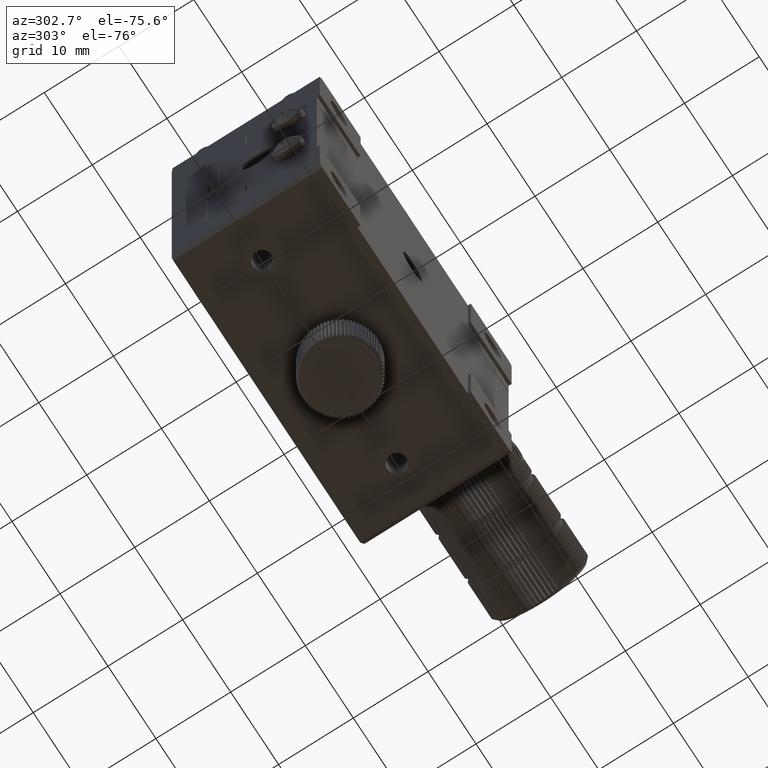
[diagram: clean part render]
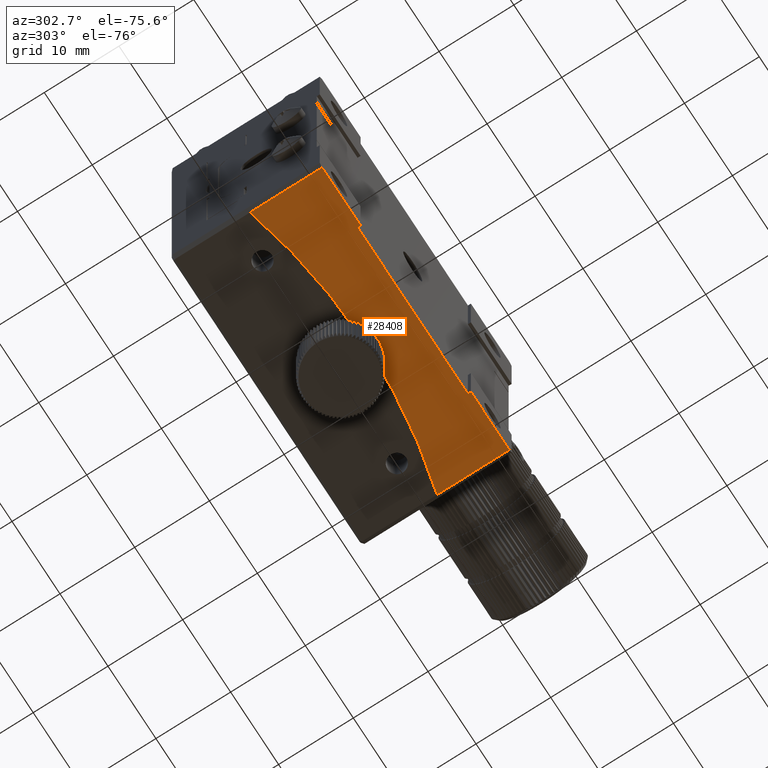
[diagram: same view with one face highlighted and labeled with its STEP entity id]
A machine part, auxiliary view. The second image highlights one B-rep face of the part: STEP entity #28408.
In plain terms, the highlighted planar face has unit normal (0, -0, 1).
Its self-contained STEP definition (entity closure, byte-faithful):
#375 = CARTESIAN_POINT ( 'NONE',  ( -22.44169290550054541, -9.742566008158442870, 8.032748843543195960 ) ) ;
#1939 = CARTESIAN_POINT ( 'NONE',  ( -14.44169290550053475, 69.85743399184154612, 8.032748843543487283 ) ) ;
#2934 = CARTESIAN_POINT ( 'NONE',  ( -45.44169290550053830, -9.742566008158441093, 8.032748843543197736 ) ) ;
#6705 = CARTESIAN_POINT ( 'NONE',  ( -33.94169290550053830, -10.14256600815843790, 8.032748843543208395 ) ) ;
#7721 = VECTOR ( 'NONE', #35888, 1000.000000000000000 ) ;
#8182 = VERTEX_POINT ( 'NONE', #2934 ) ;
#12144 = LINE ( 'NONE', #26535, #27742 ) ;
#12298 = AXIS2_PLACEMENT_3D ( 'NONE', #52929, #22444, #38541 ) ;
#12439 = EDGE_CURVE ( 'NONE', #44424, #8182, #14861, .T. ) ;
#12926 = CARTESIAN_POINT ( 'NONE',  ( -53.44169290550053120, 69.85743399184154612, 8.032748843543487283 ) ) ;
#14518 = VERTEX_POINT ( 'NONE', #46433 ) ;
#14819 = VERTEX_POINT ( 'NONE', #33692 ) ;
#14861 = LINE ( 'NONE', #59724, #52504 ) ;
#15454 = CARTESIAN_POINT ( 'NONE',  ( -33.94169290550053120, -9.742566008158442870, 8.032748843543195960 ) ) ;
#16086 = LINE ( 'NONE', #375, #47921 ) ;
#16449 = LINE ( 'NONE', #6705, #45383 ) ;
#17054 = VERTEX_POINT ( 'NONE', #34850 ) ;
#18565 = ORIENTED_EDGE ( 'NONE', *, *, #53877, .F. ) ;
#19167 = CARTESIAN_POINT ( 'NONE',  ( -14.44169290550053475, -10.14256600815843967, 8.032748843543208395 ) ) ;
#20491 = EDGE_CURVE ( 'NONE', #41689, #17054, #40087, .T. ) ;
#22444 = DIRECTION ( 'NONE',  ( 0.000000000000000000, 3.491481338843133355E-15, -1.000000000000000000 ) ) ;
#22888 = AXIS2_PLACEMENT_3D ( 'NONE', #40914, #55612, #30212 ) ;
#26359 = EDGE_LOOP ( 'NONE', ( #64740, #33551, #18565, #59602, #41543, #47518, #48731, #32596 ) ) ;
#26535 = CARTESIAN_POINT ( 'NONE',  ( -33.94169290550053830, -10.14256600815843790, 8.032748843543208395 ) ) ;
#27742 = VECTOR ( 'NONE', #42287, 1000.000000000000000 ) ;
#28408 = ADVANCED_FACE ( 'NONE', ( #35221 ), #35554, .F. ) ;
#30212 = DIRECTION ( 'NONE',  ( 0.000000000000000000, -1.000000000000000000, -3.491481338843133355E-15 ) ) ;
#32596 = ORIENTED_EDGE ( 'NONE', *, *, #20491, .F. ) ;
#33551 = ORIENTED_EDGE ( 'NONE', *, *, #55046, .F. ) ;
#33692 = CARTESIAN_POINT ( 'NONE',  ( -53.44169290550053120, -10.14256600815843790, 8.032748843543206618 ) ) ;
#34721 = VECTOR ( 'NONE', #57522, 1000.000000000000000 ) ;
#34850 = CARTESIAN_POINT ( 'NONE',  ( -53.44169290550053120, -0.4899184814391929765, 8.032748843543242145 ) ) ;
#35221 = FACE_OUTER_BOUND ( 'NONE', #26359, .T. ) ;
#35344 = EDGE_CURVE ( 'NONE', #14819, #44424, #16449, .T. ) ;
#35554 = PLANE ( 'NONE',  #22888 ) ;
#35738 = EDGE_CURVE ( 'NONE', #36445, #41689, #66242, .T. ) ;
#35888 = DIRECTION ( 'NONE',  ( 1.000000000000000000, 0.000000000000000000, 0.000000000000000000 ) ) ;
#36445 = VERTEX_POINT ( 'NONE', #19167 ) ;
#36829 = VECTOR ( 'NONE', #43740, 1000.000000000000000 ) ;
#38541 = DIRECTION ( 'NONE',  ( 0.000000000000000000, 1.000000000000000000, 3.493210287240968219E-15 ) ) ;
#39950 = CARTESIAN_POINT ( 'NONE',  ( -14.44169290550052942, -0.4899184814391894793, 8.032748843543242145 ) ) ;
#40087 = CIRCLE ( 'NONE', #12298, 72.99999999999998579 ) ;
#40577 = DIRECTION ( 'NONE',  ( 0.000000000000000000, -1.000000000000000000, -0.000000000000000000 ) ) ;
#40914 = CARTESIAN_POINT ( 'NONE',  ( -33.94169290550053830, 69.85743399184154612, 8.032748843543487283 ) ) ;
#41543 = ORIENTED_EDGE ( 'NONE', *, *, #12439, .F. ) ;
#41689 = VERTEX_POINT ( 'NONE', #39950 ) ;
#42287 = DIRECTION ( 'NONE',  ( 1.000000000000000000, 0.000000000000000000, 0.000000000000000000 ) ) ;
#43430 = VERTEX_POINT ( 'NONE', #54626 ) ;
#43740 = DIRECTION ( 'NONE',  ( 0.000000000000000000, -1.000000000000000000, -3.491481338843133355E-15 ) ) ;
#44424 = VERTEX_POINT ( 'NONE', #52840 ) ;
#45383 = VECTOR ( 'NONE', #62306, 1000.000000000000000 ) ;
#46433 = CARTESIAN_POINT ( 'NONE',  ( -22.44169290550054541, -10.14256600815843790, 8.032748843543201289 ) ) ;
#47518 = ORIENTED_EDGE ( 'NONE', *, *, #35344, .F. ) ;
#47921 = VECTOR ( 'NONE', #40577, 1000.000000000000000 ) ;
#48731 = ORIENTED_EDGE ( 'NONE', *, *, #61600, .F. ) ;
#49985 = EDGE_CURVE ( 'NONE', #8182, #43430, #61298, .T. ) ;
#52504 = VECTOR ( 'NONE', #61038, 1000.000000000000000 ) ;
#52803 = LINE ( 'NONE', #12926, #36829 ) ;
#52840 = CARTESIAN_POINT ( 'NONE',  ( -45.44169290550053830, -10.14256600815844500, 8.032748843543203066 ) ) ;
#52929 = CARTESIAN_POINT ( 'NONE',  ( -33.94169290550053830, 69.85743399184154612, 8.032748843543487283 ) ) ;
#53877 = EDGE_CURVE ( 'NONE', #43430, #14518, #16086, .T. ) ;
#54626 = CARTESIAN_POINT ( 'NONE',  ( -22.44169290550054541, -9.742566008158446422, 8.032748843543203066 ) ) ;
#55046 = EDGE_CURVE ( 'NONE', #14518, #36445, #12144, .T. ) ;
#55612 = DIRECTION ( 'NONE',  ( 0.000000000000000000, -3.491481338843133355E-15, 1.000000000000000000 ) ) ;
#57522 = DIRECTION ( 'NONE',  ( -0.000000000000000000, 1.000000000000000000, 3.491481338843133355E-15 ) ) ;
#59602 = ORIENTED_EDGE ( 'NONE', *, *, #49985, .F. ) ;
#59724 = CARTESIAN_POINT ( 'NONE',  ( -45.44169290550053830, 69.85743399184154612, 8.032748843543487283 ) ) ;
#61038 = DIRECTION ( 'NONE',  ( -0.000000000000000000, 1.000000000000000000, 3.491481338843133355E-15 ) ) ;
#61298 = LINE ( 'NONE', #15454, #7721 ) ;
#61600 = EDGE_CURVE ( 'NONE', #17054, #14819, #52803, .T. ) ;
#62306 = DIRECTION ( 'NONE',  ( 1.000000000000000000, 0.000000000000000000, 0.000000000000000000 ) ) ;
#64740 = ORIENTED_EDGE ( 'NONE', *, *, #35738, .F. ) ;
#66242 = LINE ( 'NONE', #1939, #34721 ) ;